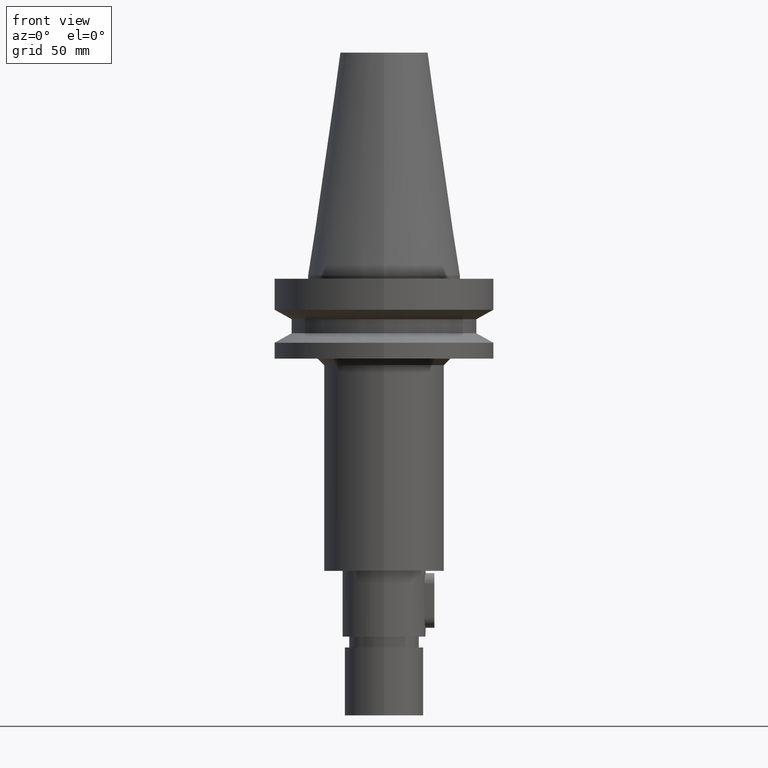
[diagram: clean part render]
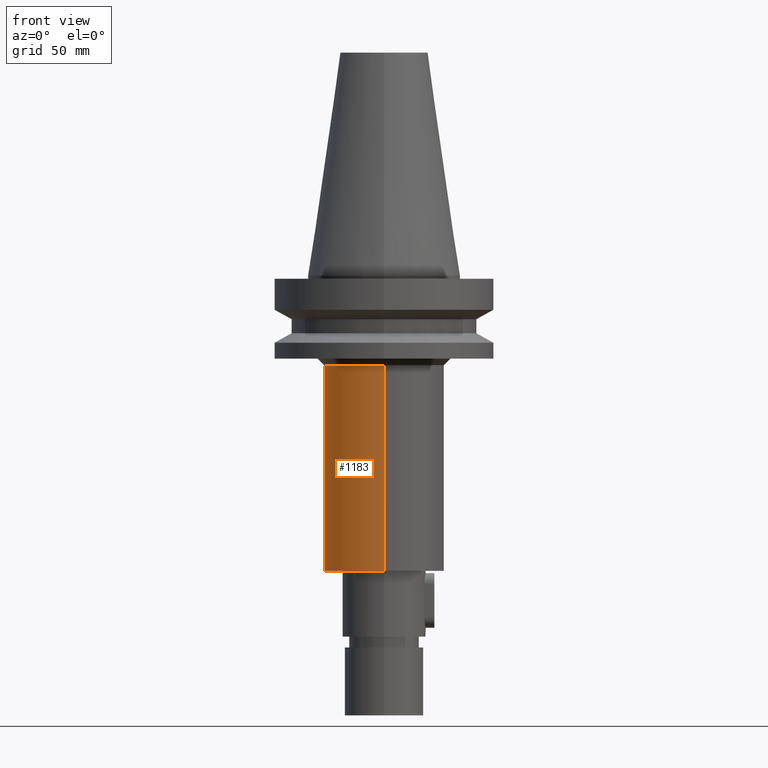
[diagram: same view with one face highlighted and labeled with its STEP entity id]
A machine part, front view. The second image highlights one B-rep face of the part: STEP entity #1183.
In plain terms, the highlighted cylindrical surface (partial cylindrical patch) has radius 27.5 mm, axis along (0, 0, -1).
Its self-contained STEP definition (entity closure, byte-faithful):
#390=CARTESIAN_POINT('',(0.E0,0.E0,-4.1E1));
#391=DIRECTION('',(0.E0,0.E0,-1.E0));
#392=DIRECTION('',(0.E0,-1.E0,0.E0));
#393=AXIS2_PLACEMENT_3D('',#390,#391,#392);
#398=DIRECTION('',(0.E0,0.E0,-1.E0));
#399=VECTOR('',#398,9.4E1);
#400=CARTESIAN_POINT('',(0.E0,-2.75E1,-4.1E1));
#401=LINE('',#400,#399);
#405=DIRECTION('',(0.E0,0.E0,-1.E0));
#406=VECTOR('',#405,9.4E1);
#407=CARTESIAN_POINT('',(0.E0,2.75E1,-4.1E1));
#408=LINE('',#407,#406);
#412=CARTESIAN_POINT('',(0.E0,2.656748766070E-14,-1.35E2));
#413=DIRECTION('',(0.E0,0.E0,1.E0));
#414=DIRECTION('',(0.E0,1.E0,0.E0));
#415=AXIS2_PLACEMENT_3D('',#412,#413,#414);
#762=CARTESIAN_POINT('',(0.E0,2.75E1,-4.1E1));
#763=VERTEX_POINT('',#762);
#764=CARTESIAN_POINT('',(0.E0,-2.75E1,-4.1E1));
#765=VERTEX_POINT('',#764);
#766=CARTESIAN_POINT('',(0.E0,2.75E1,-1.35E2));
#767=VERTEX_POINT('',#766);
#768=CARTESIAN_POINT('',(0.E0,-2.75E1,-1.35E2));
#769=VERTEX_POINT('',#768);
#1169=CARTESIAN_POINT('',(0.E0,2.656748766070E-14,1.1694E2));
#1170=DIRECTION('',(0.E0,0.E0,-1.E0));
#1171=DIRECTION('',(0.E0,-1.E0,0.E0));
#1172=AXIS2_PLACEMENT_3D('',#1169,#1170,#1171);
#1173=CYLINDRICAL_SURFACE('',#1172,2.75E1);
#1175=ORIENTED_EDGE('',*,*,#1174,.F.);
#1176=ORIENTED_EDGE('',*,*,#1164,.F.);
#1178=ORIENTED_EDGE('',*,*,#1177,.T.);
#1180=ORIENTED_EDGE('',*,*,#1179,.F.);
#1181=EDGE_LOOP('',(#1175,#1176,#1178,#1180));
#1182=FACE_OUTER_BOUND('',#1181,.F.);
#394=CIRCLE('',#393,2.75E1);
#416=CIRCLE('',#415,2.75E1);
#1164=EDGE_CURVE('',#765,#763,#394,.T.);
#1174=EDGE_CURVE('',#763,#767,#408,.T.);
#1177=EDGE_CURVE('',#765,#769,#401,.T.);
#1179=EDGE_CURVE('',#767,#769,#416,.T.);
#1183=ADVANCED_FACE('',(#1182),#1173,.T.);